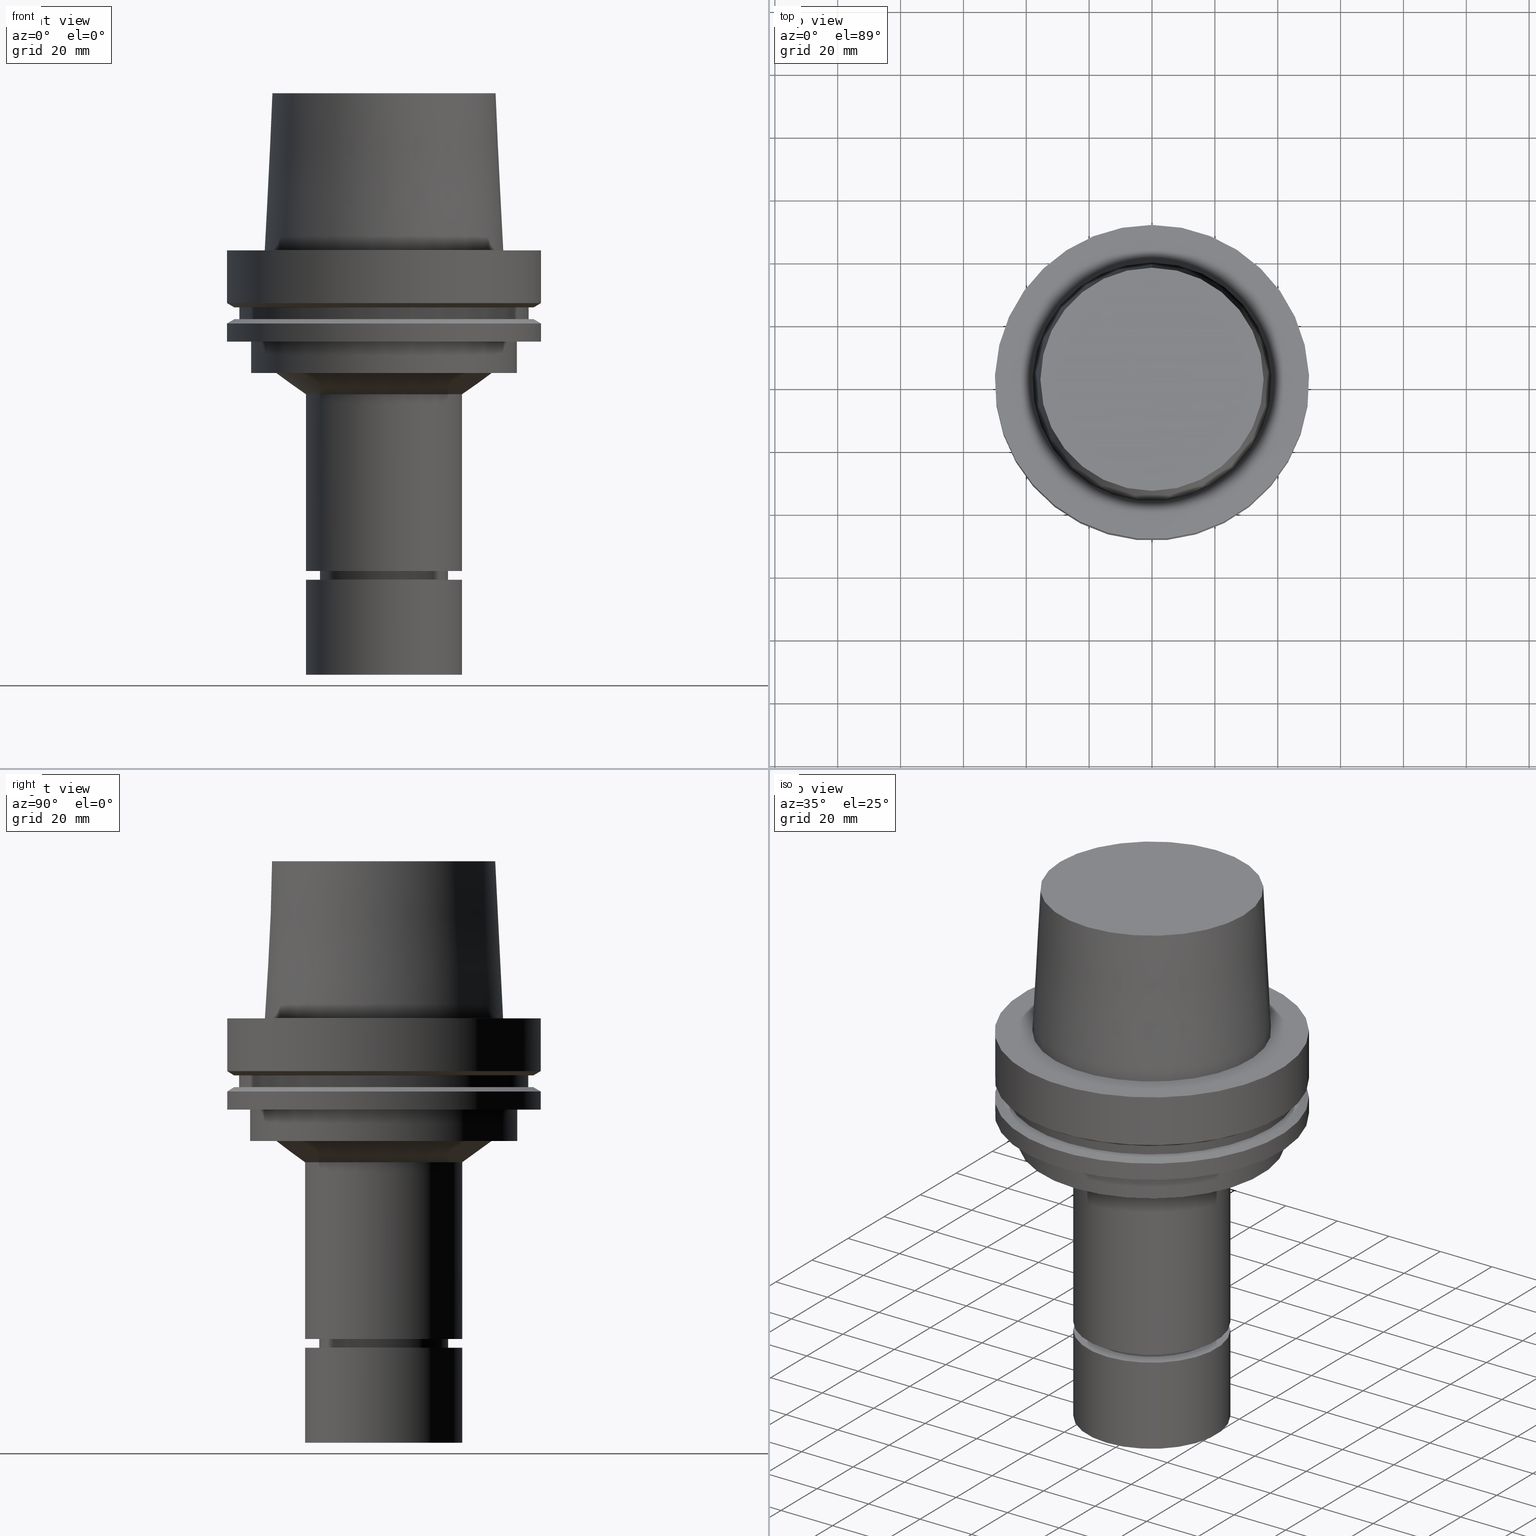
[diagram: canonical four-view strip — front | top / right | iso, engineering-drawing reading convention]
A machine part, canonical four-view strip (front | top / right | iso — engineering-drawing reading convention). The complete STEP part file that produces these views, byte-faithful:
ISO-10303-21;
HEADER;
FILE_DESCRIPTION((''),'1');
FILE_NAME('U:/Translate/02_3D_Field-HP\X2\FF71FF6FFF8CFF9F5916\X0\2013/02_Step_Field-HP\X2\FF71FF6FFF8CFF9F5916\X0\2013/HSK-A100-MEGAER32-135NL.stp','2016-06-22T04:00:22',(''),(''),'Spatial Interop R21 SP3','Kubotek KeyCreator 2011 V10.0.2 (22737)',' ');
FILE_SCHEMA(('automotive_design'));
ENDSEC;
DATA;
#1=MECHANICAL_DESIGN_GEOMETRIC_PRESENTATION_REPRESENTATION(' ',(#14,#15,#16,#17,#18,#19,#20,#21,#22,#23,#24,#25,#26,#27,#28,#29,#30,#31,#32,#33,#34,#35,#36,#37,#38,#39,#40,#41,#42,#43,#44,#45,#46,#47,#48,#49,#50,#51,#52,#53,#54,#55,#56,#57,#58,#59,#60,#61),#10);
#2=PRODUCT_DEFINITION_CONTEXT('',#62,'design');
#3=APPLICATION_PROTOCOL_DEFINITION('INTERNATIONAL STANDARD','automotive_design',1994,#62);
#4=PRODUCT_CATEGORY_RELATIONSHIP('NONE','NONE',#63,#64);
#5=SHAPE_DEFINITION_REPRESENTATION(#65,#66);
#6=PRODUCT_DEFINITION_CONTEXT('',#67,'design');
#7=APPLICATION_PROTOCOL_DEFINITION('INTERNATIONAL STANDARD','automotive_design',1994,#67);
#8=PRODUCT_CATEGORY_RELATIONSHIP('NONE','NONE',#68,#69);
#9=SHAPE_DEFINITION_REPRESENTATION(#70,#71);
#10= (GEOMETRIC_REPRESENTATION_CONTEXT(3)GLOBAL_UNCERTAINTY_ASSIGNED_CONTEXT((#74))GLOBAL_UNIT_ASSIGNED_CONTEXT((#76,#77,#78))REPRESENTATION_CONTEXT('NONE','WORKSPACE'));
#14=STYLED_ITEM('',(#80),#81);
#15=STYLED_ITEM('',(#82,#83),#84);
#16=STYLED_ITEM('',(#85,#86),#87);
#17=STYLED_ITEM('',(#88),#89);
#18=STYLED_ITEM('',(#90,#91),#92);
#19=STYLED_ITEM('',(#93,#94),#95);
#20=STYLED_ITEM('',(#96),#97);
#21=STYLED_ITEM('',(#98,#99),#100);
#22=STYLED_ITEM('',(#101),#102);
#23=STYLED_ITEM('',(#103,#104),#105);
#24=STYLED_ITEM('',(#106),#107);
#25=STYLED_ITEM('',(#108),#109);
#26=STYLED_ITEM('',(#110),#111);
#27=STYLED_ITEM('',(#112,#113),#114);
#28=STYLED_ITEM('',(#115),#116);
#29=STYLED_ITEM('',(#117),#118);
#30=STYLED_ITEM('',(#119,#120),#121);
#31=STYLED_ITEM('',(#122,#123),#124);
#32=STYLED_ITEM('',(#125,#126),#127);
#33=STYLED_ITEM('',(#128),#129);
#34=STYLED_ITEM('',(#130),#131);
#35=STYLED_ITEM('',(#132),#133);
#36=STYLED_ITEM('',(#134,#135),#136);
#37=STYLED_ITEM('',(#137,#138),#139);
#38=STYLED_ITEM('',(#140),#141);
#39=STYLED_ITEM('',(#142,#143),#144);
#40=STYLED_ITEM('',(#145),#146);
#41=STYLED_ITEM('',(#147,#148),#149);
#42=STYLED_ITEM('',(#150,#151),#152);
#43=STYLED_ITEM('',(#153),#154);
#44=STYLED_ITEM('',(#155,#156),#157);
#45=STYLED_ITEM('',(#158,#159),#160);
#46=STYLED_ITEM('',(#161,#162),#163);
#47=STYLED_ITEM('',(#164,#165),#166);
#48=STYLED_ITEM('',(#167,#168),#169);
#49=STYLED_ITEM('',(#170),#171);
#50=STYLED_ITEM('',(#172,#173),#174);
#51=STYLED_ITEM('',(#175,#176),#177);
#52=STYLED_ITEM('',(#178,#179),#180);
#53=STYLED_ITEM('',(#181),#182);
#54=STYLED_ITEM('',(#183,#184),#185);
#55=STYLED_ITEM('',(#186),#187);
#56=STYLED_ITEM('',(#188),#189);
#57=STYLED_ITEM('',(#190,#191),#192);
#58=STYLED_ITEM('',(#193,#194),#195);
#59=STYLED_ITEM('',(#196),#197);
#60=STYLED_ITEM('',(#198),#199);
#61=STYLED_ITEM('',(#200),#201);
#62=APPLICATION_CONTEXT(' ');
#63=PRODUCT_CATEGORY('part','NONE');
#64=PRODUCT_RELATED_PRODUCT_CATEGORY('detail',' ',(#202));
#65=PRODUCT_DEFINITION_SHAPE('NONE','NONE',#203);
#66=ADVANCED_BREP_SHAPE_REPRESENTATION('Unnamed[1]',(#160,#204),#10);
#67=APPLICATION_CONTEXT(' ');
#68=PRODUCT_CATEGORY('part','NONE');
#69=PRODUCT_RELATED_PRODUCT_CATEGORY('detail',' ',(#205));
#70=PRODUCT_DEFINITION_SHAPE('NONE','NONE',#206);
#71=ADVANCED_BREP_SHAPE_REPRESENTATION('Unnamed[1]',(#114,#207),#10);
#74=UNCERTAINTY_MEASURE_WITH_UNIT(LENGTH_MEASURE(1.0E-006),#76,'','');
#76= (CONVERSION_BASED_UNIT('MILLIMETRE',#210)LENGTH_UNIT()NAMED_UNIT(#213));
#77= (NAMED_UNIT(#215)PLANE_ANGLE_UNIT()SI_UNIT($,.RADIAN.));
#78= (NAMED_UNIT(#215)SOLID_ANGLE_UNIT()SI_UNIT($,.STERADIAN.));
#80=PRESENTATION_STYLE_ASSIGNMENT((#221));
#81=EDGE_CURVE('Unnamed[1]',#222,#222,#223,.T.);
#82=PRESENTATION_STYLE_ASSIGNMENT((#224));
#83=PRESENTATION_STYLE_ASSIGNMENT((#225));
#84=ADVANCED_FACE('Unnamed[1]',(#226),#227,.T.);
#85=PRESENTATION_STYLE_ASSIGNMENT((#228));
#86=PRESENTATION_STYLE_ASSIGNMENT((#229));
#87=ADVANCED_FACE('Unnamed[1]',(#230,#231),#232,.T.);
#88=PRESENTATION_STYLE_ASSIGNMENT((#233));
#89=EDGE_CURVE('Unnamed[1]',#234,#234,#235,.T.);
#90=PRESENTATION_STYLE_ASSIGNMENT((#236));
#91=PRESENTATION_STYLE_ASSIGNMENT((#237));
#92=ADVANCED_FACE('Unnamed[1]',(#238),#239,.T.);
#93=PRESENTATION_STYLE_ASSIGNMENT((#240));
#94=PRESENTATION_STYLE_ASSIGNMENT((#241));
#95=ADVANCED_FACE('Unnamed[1]',(#242,#243),#244,.T.);
#96=PRESENTATION_STYLE_ASSIGNMENT((#245));
#97=EDGE_CURVE('Unnamed[1]',#246,#246,#247,.T.);
#98=PRESENTATION_STYLE_ASSIGNMENT((#248));
#99=PRESENTATION_STYLE_ASSIGNMENT((#249));
#100=ADVANCED_FACE('Unnamed[1]',(#250,#251),#252,.T.);
#101=PRESENTATION_STYLE_ASSIGNMENT((#253));
#102=EDGE_CURVE('Unnamed[1]',#254,#254,#255,.T.);
#103=PRESENTATION_STYLE_ASSIGNMENT((#256));
#104=PRESENTATION_STYLE_ASSIGNMENT((#257));
#105=ADVANCED_FACE('Unnamed[1]',(#258,#259),#260,.T.);
#106=PRESENTATION_STYLE_ASSIGNMENT((#261));
#107=EDGE_CURVE('Unnamed[1]',#262,#262,#263,.T.);
#108=PRESENTATION_STYLE_ASSIGNMENT((#264));
#109=EDGE_CURVE('Unnamed[1]',#265,#265,#266,.T.);
#110=PRESENTATION_STYLE_ASSIGNMENT((#267));
#111=EDGE_CURVE('Unnamed[1]',#268,#268,#269,.T.);
#112=PRESENTATION_STYLE_ASSIGNMENT((#270));
#113=PRESENTATION_STYLE_ASSIGNMENT((#271));
#114=MANIFOLD_SOLID_BREP('Unnamed[1]',#272);
#115=PRESENTATION_STYLE_ASSIGNMENT((#273));
#116=EDGE_CURVE('Unnamed[1]',#274,#274,#275,.T.);
#117=PRESENTATION_STYLE_ASSIGNMENT((#276));
#118=EDGE_CURVE('Unnamed[1]',#277,#277,#278,.T.);
#119=PRESENTATION_STYLE_ASSIGNMENT((#279));
#120=PRESENTATION_STYLE_ASSIGNMENT((#280));
#121=ADVANCED_FACE('Unnamed[1]',(#281,#282),#283,.T.);
#122=PRESENTATION_STYLE_ASSIGNMENT((#284));
#123=PRESENTATION_STYLE_ASSIGNMENT((#285));
#124=ADVANCED_FACE('Unnamed[1]',(#286,#287),#288,.T.);
#125=PRESENTATION_STYLE_ASSIGNMENT((#289));
#126=PRESENTATION_STYLE_ASSIGNMENT((#290));
#127=ADVANCED_FACE('Unnamed[1]',(#291,#292),#293,.T.);
#128=PRESENTATION_STYLE_ASSIGNMENT((#294));
#129=EDGE_CURVE('Unnamed[1]',#295,#295,#296,.T.);
#130=PRESENTATION_STYLE_ASSIGNMENT((#297));
#131=EDGE_CURVE('Unnamed[1]',#298,#298,#299,.T.);
#132=PRESENTATION_STYLE_ASSIGNMENT((#300));
#133=EDGE_CURVE('Unnamed[1]',#301,#301,#302,.T.);
#134=PRESENTATION_STYLE_ASSIGNMENT((#303));
#135=PRESENTATION_STYLE_ASSIGNMENT((#304));
#136=ADVANCED_FACE('Unnamed[1]',(#305,#306),#307,.T.);
#137=PRESENTATION_STYLE_ASSIGNMENT((#308));
#138=PRESENTATION_STYLE_ASSIGNMENT((#309));
#139=ADVANCED_FACE('Unnamed[1]',(#310,#311),#312,.T.);
#140=PRESENTATION_STYLE_ASSIGNMENT((#313));
#141=EDGE_CURVE('Unnamed[1]',#314,#314,#315,.T.);
#142=PRESENTATION_STYLE_ASSIGNMENT((#316));
#143=PRESENTATION_STYLE_ASSIGNMENT((#317));
#144=ADVANCED_FACE('Unnamed[1]',(#318,#319),#320,.T.);
#145=PRESENTATION_STYLE_ASSIGNMENT((#321));
#146=EDGE_CURVE('Unnamed[1]',#322,#322,#323,.T.);
#147=PRESENTATION_STYLE_ASSIGNMENT((#324));
#148=PRESENTATION_STYLE_ASSIGNMENT((#325));
#149=ADVANCED_FACE('Unnamed[1]',(#326,#327),#328,.T.);
#150=PRESENTATION_STYLE_ASSIGNMENT((#329));
#151=PRESENTATION_STYLE_ASSIGNMENT((#330));
#152=ADVANCED_FACE('Unnamed[1]',(#331,#332),#333,.T.);
#153=PRESENTATION_STYLE_ASSIGNMENT((#334));
#154=EDGE_CURVE('Unnamed[1]',#335,#335,#336,.T.);
#155=PRESENTATION_STYLE_ASSIGNMENT((#337));
#156=PRESENTATION_STYLE_ASSIGNMENT((#338));
#157=ADVANCED_FACE('Unnamed[1]',(#339,#340),#341,.T.);
#158=PRESENTATION_STYLE_ASSIGNMENT((#342));
#159=PRESENTATION_STYLE_ASSIGNMENT((#343));
#160=MANIFOLD_SOLID_BREP('Unnamed[1]',#344);
#161=PRESENTATION_STYLE_ASSIGNMENT((#345));
#162=PRESENTATION_STYLE_ASSIGNMENT((#346));
#163=ADVANCED_FACE('Unnamed[1]',(#347),#348,.T.);
#164=PRESENTATION_STYLE_ASSIGNMENT((#349));
#165=PRESENTATION_STYLE_ASSIGNMENT((#350));
#166=ADVANCED_FACE('Unnamed[1]',(#351,#352),#353,.T.);
#167=PRESENTATION_STYLE_ASSIGNMENT((#354));
#168=PRESENTATION_STYLE_ASSIGNMENT((#355));
#169=ADVANCED_FACE('Unnamed[1]',(#356,#357),#358,.T.);
#170=PRESENTATION_STYLE_ASSIGNMENT((#359));
#171=EDGE_CURVE('Unnamed[1]',#360,#360,#361,.T.);
#172=PRESENTATION_STYLE_ASSIGNMENT((#362));
#173=PRESENTATION_STYLE_ASSIGNMENT((#363));
#174=ADVANCED_FACE('Unnamed[1]',(#364,#365),#366,.T.);
#175=PRESENTATION_STYLE_ASSIGNMENT((#367));
#176=PRESENTATION_STYLE_ASSIGNMENT((#368));
#177=ADVANCED_FACE('Unnamed[1]',(#369,#370),#371,.T.);
#178=PRESENTATION_STYLE_ASSIGNMENT((#372));
#179=PRESENTATION_STYLE_ASSIGNMENT((#373));
#180=ADVANCED_FACE('Unnamed[1]',(#374,#375),#376,.T.);
#181=PRESENTATION_STYLE_ASSIGNMENT((#377));
#182=EDGE_CURVE('Unnamed[1]',#378,#378,#379,.T.);
#183=PRESENTATION_STYLE_ASSIGNMENT((#380));
#184=PRESENTATION_STYLE_ASSIGNMENT((#381));
#185=ADVANCED_FACE('Unnamed[1]',(#382,#383),#384,.T.);
#186=PRESENTATION_STYLE_ASSIGNMENT((#385));
#187=EDGE_CURVE('Unnamed[1]',#386,#386,#387,.T.);
#188=PRESENTATION_STYLE_ASSIGNMENT((#388));
#189=EDGE_CURVE('Unnamed[1]',#389,#389,#390,.T.);
#190=PRESENTATION_STYLE_ASSIGNMENT((#391));
#191=PRESENTATION_STYLE_ASSIGNMENT((#392));
#192=ADVANCED_FACE('Unnamed[1]',(#393),#394,.T.);
#193=PRESENTATION_STYLE_ASSIGNMENT((#395));
#194=PRESENTATION_STYLE_ASSIGNMENT((#396));
#195=ADVANCED_FACE('Unnamed[1]',(#397,#398),#399,.T.);
#196=PRESENTATION_STYLE_ASSIGNMENT((#400));
#197=EDGE_CURVE('Unnamed[1]',#401,#401,#402,.T.);
#198=PRESENTATION_STYLE_ASSIGNMENT((#403));
#199=EDGE_CURVE('Unnamed[1]',#404,#404,#405,.T.);
#200=PRESENTATION_STYLE_ASSIGNMENT((#406));
#201=EDGE_CURVE('Unnamed[1]',#407,#407,#408,.T.);
#202=PRODUCT('Unnamed[1]','Unnamed[1]','PART-Unnamed[1]-DESC',(#409));
#203=PRODUCT_DEFINITION('NONE','NONE',#410,#2);
#204=AXIS2_PLACEMENT_3D('',#411,#412,#413);
#205=PRODUCT('Unnamed[1]','Unnamed[1]','PART-Unnamed[1]-DESC',(#414));
#206=PRODUCT_DEFINITION('NONE','NONE',#415,#6);
#207=AXIS2_PLACEMENT_3D('',#416,#417,#418);
#210=LENGTH_MEASURE_WITH_UNIT(LENGTH_MEASURE(1.0),#419);
#213=DIMENSIONAL_EXPONENTS(1.0,0.0,0.0,0.0,0.0,0.0,0.0);
#215=DIMENSIONAL_EXPONENTS(0.0,0.0,0.0,0.0,0.0,0.0,0.0);
#221=CURVE_STYLE('',#420,POSITIVE_LENGTH_MEASURE(1000.0),#421);
#222=VERTEX_POINT('',#422);
#223=CIRCLE('',#423,25.0);
#224=SURFACE_STYLE_USAGE(.BOTH.,#424);
#225=CURVE_STYLE('',#425,POSITIVE_LENGTH_MEASURE(1000.0),#426);
#226=FACE_OUTER_BOUND('',#427,.T.);
#227=PLANE('',#428);
#228=SURFACE_STYLE_USAGE(.BOTH.,#429);
#229=CURVE_STYLE('',#430,POSITIVE_LENGTH_MEASURE(1000.0),#431);
#230=FACE_BOUND('',#432,.T.);
#231=FACE_BOUND('',#433,.T.);
#232=CYLINDRICAL_SURFACE('',#434,50.0);
#233=CURVE_STYLE('',#435,POSITIVE_LENGTH_MEASURE(1000.0),#436);
#234=VERTEX_POINT('',#437);
#235=CIRCLE('',#438,25.0);
#236=SURFACE_STYLE_USAGE(.BOTH.,#439);
#237=CURVE_STYLE('',#440,POSITIVE_LENGTH_MEASURE(1000.0),#441);
#238=FACE_OUTER_BOUND('',#442,.T.);
#239=PLANE('',#443);
#240=SURFACE_STYLE_USAGE(.BOTH.,#444);
#241=CURVE_STYLE('',#445,POSITIVE_LENGTH_MEASURE(1000.0),#446);
#242=FACE_BOUND('',#447,.T.);
#243=FACE_BOUND('',#448,.T.);
#244=CYLINDRICAL_SURFACE('',#449,25.0);
#245=CURVE_STYLE('',#450,POSITIVE_LENGTH_MEASURE(1000.0),#451);
#246=VERTEX_POINT('',#452);
#247=CIRCLE('',#453,50.0);
#248=SURFACE_STYLE_USAGE(.BOTH.,#454);
#249=CURVE_STYLE('',#455,POSITIVE_LENGTH_MEASURE(1000.0),#456);
#250=FACE_BOUND('',#457,.T.);
#251=FACE_OUTER_BOUND('',#458,.T.);
#252=PLANE('',#459);
#253=CURVE_STYLE('',#460,POSITIVE_LENGTH_MEASURE(1000.0),#461);
#254=VERTEX_POINT('',#462);
#255=CIRCLE('',#463,50.0);
#256=SURFACE_STYLE_USAGE(.BOTH.,#464);
#257=CURVE_STYLE('',#465,POSITIVE_LENGTH_MEASURE(1000.0),#466);
#258=FACE_OUTER_BOUND('',#467,.T.);
#259=FACE_BOUND('',#468,.T.);
#260=PLANE('',#469);
#261=CURVE_STYLE('',#470,POSITIVE_LENGTH_MEASURE(1000.0),#471);
#262=VERTEX_POINT('',#472);
#263=CIRCLE('',#473,34.3193294456171);
#264=CURVE_STYLE('',#474,POSITIVE_LENGTH_MEASURE(1000.0),#475);
#265=VERTEX_POINT('',#476);
#266=CIRCLE('',#477,50.0);
#267=CURVE_STYLE('',#478,POSITIVE_LENGTH_MEASURE(1000.0),#479);
#268=VERTEX_POINT('',#480);
#269=CIRCLE('',#481,20.0000000000001);
#270=SURFACE_STYLE_USAGE(.BOTH.,#482);
#271=CURVE_STYLE('',#483,POSITIVE_LENGTH_MEASURE(1000.0),#484);
#272=CLOSED_SHELL('',(#92,#163,#174));
#273=CURVE_STYLE('',#485,POSITIVE_LENGTH_MEASURE(1000.0),#486);
#274=VERTEX_POINT('',#487);
#275=CIRCLE('',#488,25.0);
#276=CURVE_STYLE('',#489,POSITIVE_LENGTH_MEASURE(1000.0),#490);
#277=VERTEX_POINT('',#491);
#278=CIRCLE('',#492,42.5);
#279=SURFACE_STYLE_USAGE(.BOTH.,#493);
#280=CURVE_STYLE('',#494,POSITIVE_LENGTH_MEASURE(1000.0),#495);
#281=FACE_BOUND('',#496,.T.);
#282=FACE_BOUND('',#497,.T.);
#283=CONICAL_SURFACE('',#498,48.81129763,1.04719755328238);
#284=SURFACE_STYLE_USAGE(.BOTH.,#499);
#285=CURVE_STYLE('',#500,POSITIVE_LENGTH_MEASURE(1000.0),#501);
#286=FACE_BOUND('',#502,.T.);
#287=FACE_OUTER_BOUND('',#503,.T.);
#288=PLANE('',#504);
#289=SURFACE_STYLE_USAGE(.BOTH.,#505);
#290=CURVE_STYLE('',#506,POSITIVE_LENGTH_MEASURE(1000.0),#507);
#291=FACE_BOUND('',#508,.T.);
#292=FACE_BOUND('',#509,.T.);
#293=CONICAL_SURFACE('',#510,36.7500000007484,0.0499583956894843);
#294=CURVE_STYLE('',#511,POSITIVE_LENGTH_MEASURE(1000.0),#512);
#295=VERTEX_POINT('',#513);
#296=CIRCLE('',#514,20.4999999999911);
#297=CURVE_STYLE('',#515,POSITIVE_LENGTH_MEASURE(1000.0),#516);
#298=VERTEX_POINT('',#517);
#299=CIRCLE('',#518,50.0);
#300=CURVE_STYLE('',#519,POSITIVE_LENGTH_MEASURE(1000.0),#520);
#301=VERTEX_POINT('',#521);
#302=CIRCLE('',#522,20.5000000000012);
#303=SURFACE_STYLE_USAGE(.BOTH.,#523);
#304=CURVE_STYLE('',#524,POSITIVE_LENGTH_MEASURE(1000.0),#525);
#305=FACE_BOUND('',#526,.T.);
#306=FACE_BOUND('',#527,.T.);
#307=CYLINDRICAL_SURFACE('',#528,46.0);
#308=SURFACE_STYLE_USAGE(.BOTH.,#529);
#309=CURVE_STYLE('',#530,POSITIVE_LENGTH_MEASURE(1000.0),#531);
#310=FACE_BOUND('',#532,.T.);
#311=FACE_BOUND('',#533,.T.);
#312=CONICAL_SURFACE('',#534,29.6596647228086,0.942916776538398);
#313=CURVE_STYLE('',#535,POSITIVE_LENGTH_MEASURE(1000.0),#536);
#314=VERTEX_POINT('',#537);
#315=CIRCLE('',#538,35.5000000015618);
#316=SURFACE_STYLE_USAGE(.BOTH.,#539);
#317=CURVE_STYLE('',#540,POSITIVE_LENGTH_MEASURE(1000.0),#541);
#318=FACE_BOUND('',#542,.T.);
#319=FACE_BOUND('',#543,.T.);
#320=CYLINDRICAL_SURFACE('',#544,42.5);
#321=CURVE_STYLE('',#545,POSITIVE_LENGTH_MEASURE(1000.0),#546);
#322=VERTEX_POINT('',#547);
#323=CIRCLE('',#548,25.0);
#324=SURFACE_STYLE_USAGE(.BOTH.,#549);
#325=CURVE_STYLE('',#550,POSITIVE_LENGTH_MEASURE(1000.0),#551);
#326=FACE_BOUND('',#552,.T.);
#327=FACE_BOUND('',#553,.T.);
#328=CYLINDRICAL_SURFACE('',#554,20.4999999999961);
#329=SURFACE_STYLE_USAGE(.BOTH.,#555);
#330=CURVE_STYLE('',#556,POSITIVE_LENGTH_MEASURE(1000.0),#557);
#331=FACE_BOUND('',#558,.T.);
#332=FACE_OUTER_BOUND('',#559,.T.);
#333=PLANE('',#560);
#334=CURVE_STYLE('',#561,POSITIVE_LENGTH_MEASURE(1000.0),#562);
#335=VERTEX_POINT('',#563);
#336=CIRCLE('',#564,46.0);
#337=SURFACE_STYLE_USAGE(.BOTH.,#565);
#338=CURVE_STYLE('',#566,POSITIVE_LENGTH_MEASURE(1000.0),#567);
#339=FACE_BOUND('',#568,.T.);
#340=FACE_BOUND('',#569,.T.);
#341=CONICAL_SURFACE('',#570,19.4499999999999,0.523598775598226);
#342=SURFACE_STYLE_USAGE(.BOTH.,#571);
#343=CURVE_STYLE('',#572,POSITIVE_LENGTH_MEASURE(1000.0),#573);
#344=CLOSED_SHELL('',(#84,#127,#180,#87,#121,#100,#136,#105,#177,#169,#166,#144,#124,#139,#95,#152,#149,#195,#185,#157,#192));
#345=SURFACE_STYLE_USAGE(.BOTH.,#574);
#346=CURVE_STYLE('',#575,POSITIVE_LENGTH_MEASURE(1000.0),#576);
#347=FACE_OUTER_BOUND('',#577,.T.);
#348=PLANE('',#578);
#349=SURFACE_STYLE_USAGE(.BOTH.,#579);
#350=CURVE_STYLE('',#580,POSITIVE_LENGTH_MEASURE(1000.0),#581);
#351=FACE_BOUND('',#582,.T.);
#352=FACE_OUTER_BOUND('',#583,.T.);
#353=PLANE('',#584);
#354=SURFACE_STYLE_USAGE(.BOTH.,#585);
#355=CURVE_STYLE('',#586,POSITIVE_LENGTH_MEASURE(1000.0),#587);
#356=FACE_BOUND('',#588,.T.);
#357=FACE_BOUND('',#589,.T.);
#358=CYLINDRICAL_SURFACE('',#590,50.0);
#359=CURVE_STYLE('',#591,POSITIVE_LENGTH_MEASURE(1000.0),#592);
#360=VERTEX_POINT('',#593);
#361=CIRCLE('',#594,18.8999999999997);
#362=SURFACE_STYLE_USAGE(.BOTH.,#595);
#363=CURVE_STYLE('',#596,POSITIVE_LENGTH_MEASURE(1000.0),#597);
#364=FACE_BOUND('',#598,.T.);
#365=FACE_BOUND('',#599,.T.);
#366=CYLINDRICAL_SURFACE('',#600,25.0);
#367=SURFACE_STYLE_USAGE(.BOTH.,#601);
#368=CURVE_STYLE('',#602,POSITIVE_LENGTH_MEASURE(1000.0),#603);
#369=FACE_BOUND('',#604,.T.);
#370=FACE_BOUND('',#605,.T.);
#371=CONICAL_SURFACE('',#606,48.81129763,1.04719755328238);
#372=SURFACE_STYLE_USAGE(.BOTH.,#607);
#373=CURVE_STYLE('',#608,POSITIVE_LENGTH_MEASURE(1000.0),#609);
#374=FACE_OUTER_BOUND('',#610,.T.);
#375=FACE_BOUND('',#611,.T.);
#376=PLANE('',#612);
#377=CURVE_STYLE('',#613,POSITIVE_LENGTH_MEASURE(1000.0),#614);
#378=VERTEX_POINT('',#615);
#379=CIRCLE('',#616,47.62259526);
#380=SURFACE_STYLE_USAGE(.BOTH.,#617);
#381=CURVE_STYLE('',#618,POSITIVE_LENGTH_MEASURE(1000.0),#619);
#382=FACE_BOUND('',#620,.T.);
#383=FACE_BOUND('',#621,.T.);
#384=CYLINDRICAL_SURFACE('',#622,20.0);
#385=CURVE_STYLE('',#623,POSITIVE_LENGTH_MEASURE(1000.0),#624);
#386=VERTEX_POINT('',#625);
#387=CIRCLE('',#626,47.62259526);
#388=CURVE_STYLE('',#627,POSITIVE_LENGTH_MEASURE(1000.0),#628);
#389=VERTEX_POINT('',#629);
#390=CIRCLE('',#630,42.5);
#391=SURFACE_STYLE_USAGE(.BOTH.,#631);
#392=CURVE_STYLE('',#632,POSITIVE_LENGTH_MEASURE(1000.0),#633);
#393=FACE_OUTER_BOUND('',#634,.T.);
#394=PLANE('',#635);
#395=SURFACE_STYLE_USAGE(.BOTH.,#636);
#396=CURVE_STYLE('',#637,POSITIVE_LENGTH_MEASURE(1000.0),#638);
#397=FACE_BOUND('',#639,.T.);
#398=FACE_BOUND('',#640,.T.);
#399=CONICAL_SURFACE('',#641,20.2500000000006,0.766162649696648);
#400=CURVE_STYLE('',#642,POSITIVE_LENGTH_MEASURE(1000.0),#643);
#401=VERTEX_POINT('',#644);
#402=CIRCLE('',#645,37.9999999999349);
#403=CURVE_STYLE('',#646,POSITIVE_LENGTH_MEASURE(1000.0),#647);
#404=VERTEX_POINT('',#648);
#405=CIRCLE('',#649,46.0);
#406=CURVE_STYLE('',#650,POSITIVE_LENGTH_MEASURE(1000.0),#651);
#407=VERTEX_POINT('',#652);
#408=CIRCLE('',#653,20.0);
#409=PRODUCT_CONTEXT('',#62,'mechanical');
#410=PRODUCT_DEFINITION_FORMATION_WITH_SPECIFIED_SOURCE(' ','NONE',#202,.NOT_KNOWN.);
#411=CARTESIAN_POINT('',(0.0,0.0,0.0));
#412=DIRECTION('',(0.0,0.0,1.0));
#413=DIRECTION('',(1.0,0.0,0.0));
#414=PRODUCT_CONTEXT('',#67,'mechanical');
#415=PRODUCT_DEFINITION_FORMATION_WITH_SPECIFIED_SOURCE(' ','NONE',#205,.NOT_KNOWN.);
#416=CARTESIAN_POINT('',(0.0,0.0,0.0));
#417=DIRECTION('',(0.0,0.0,1.0));
#418=DIRECTION('',(1.0,0.0,0.0));
#419= (NAMED_UNIT(#213)LENGTH_UNIT()SI_UNIT(.MILLI.,.METRE.));
#420=DRAUGHTING_PRE_DEFINED_CURVE_FONT('continuous');
#421=COLOUR_RGB('',0.0,1.0,0.0);
#422=CARTESIAN_POINT('',(8.26636589424463E-015,25.0,-135.0));
#423=AXIS2_PLACEMENT_3D('',#655,#656,#657);
#424=SURFACE_SIDE_STYLE('',(#658));
#425=DRAUGHTING_PRE_DEFINED_CURVE_FONT('continuous');
#426=COLOUR_RGB('',0.0,1.0,0.0);
#427=EDGE_LOOP('',(#659));
#428=AXIS2_PLACEMENT_3D('',#660,#661,#662);
#429=SURFACE_SIDE_STYLE('',(#663));
#430=DRAUGHTING_PRE_DEFINED_CURVE_FONT('continuous');
#431=COLOUR_RGB('',0.0,1.0,0.0);
#432=EDGE_LOOP('',(#664));
#433=EDGE_LOOP('',(#665));
#434=AXIS2_PLACEMENT_3D('',#666,#667,#668);
#435=DRAUGHTING_PRE_DEFINED_CURVE_FONT('continuous');
#436=COLOUR_RGB('',0.0,1.0,0.0);
#437=CARTESIAN_POINT('',(6.2457083239948E-015,25.0,-102.000157569404));
#438=AXIS2_PLACEMENT_3D('',#669,#670,#671);
#439=SURFACE_SIDE_STYLE('',(#672));
#440=DRAUGHTING_PRE_DEFINED_CURVE_FONT('continuous');
#441=COLOUR_RGB('',0.0,1.0,0.0);
#442=EDGE_LOOP('',(#673));
#443=AXIS2_PLACEMENT_3D('',#674,#675,#676);
#444=SURFACE_SIDE_STYLE('',(#677));
#445=DRAUGHTING_PRE_DEFINED_CURVE_FONT('continuous');
#446=COLOUR_RGB('',0.0,1.0,0.0);
#447=EDGE_LOOP('',(#678));
#448=EDGE_LOOP('',(#679));
#449=AXIS2_PLACEMENT_3D('',#680,#681,#682);
#450=DRAUGHTING_PRE_DEFINED_CURVE_FONT('continuous');
#451=COLOUR_RGB('',0.0,1.0,0.0);
#452=CARTESIAN_POINT('',(1.0257889421431E-015,50.0,-16.75240474));
#453=AXIS2_PLACEMENT_3D('',#683,#684,#685);
#454=SURFACE_SIDE_STYLE('',(#686));
#455=DRAUGHTING_PRE_DEFINED_CURVE_FONT('continuous');
#456=COLOUR_RGB('',0.0,1.0,0.0);
#457=EDGE_LOOP('',(#687));
#458=EDGE_LOOP('',(#688));
#459=AXIS2_PLACEMENT_3D('',#689,#690,#691);
#460=DRAUGHTING_PRE_DEFINED_CURVE_FONT('continuous');
#461=COLOUR_RGB('',0.0,1.0,0.0);
#462=CARTESIAN_POINT('',(1.42350465615161E-015,50.0,-23.24759526));
#463=AXIS2_PLACEMENT_3D('',#692,#693,#694);
#464=SURFACE_SIDE_STYLE('',(#695));
#465=DRAUGHTING_PRE_DEFINED_CURVE_FONT('continuous');
#466=COLOUR_RGB('',0.0,1.0,0.0);
#467=EDGE_LOOP('',(#696));
#468=EDGE_LOOP('',(#697));
#469=AXIS2_PLACEMENT_3D('',#698,#699,#700);
#470=DRAUGHTING_PRE_DEFINED_CURVE_FONT('continuous');
#471=COLOUR_RGB('',0.0,1.0,0.0);
#472=CARTESIAN_POINT('',(2.38806125833734E-015,34.3193294456171,-39.0));
#473=AXIS2_PLACEMENT_3D('',#701,#702,#703);
#474=DRAUGHTING_PRE_DEFINED_CURVE_FONT('continuous');
#475=COLOUR_RGB('',0.0,1.0,0.0);
#476=CARTESIAN_POINT('',(1.77573785876366E-015,50.0,-29.0));
#477=AXIS2_PLACEMENT_3D('',#704,#705,#706);
#478=DRAUGHTING_PRE_DEFINED_CURVE_FONT('continuous');
#479=COLOUR_RGB('',0.0,1.0,0.0);
#480=CARTESIAN_POINT('',(7.4761468784538E-015,20.0000000000001,-122.094744111673));
#481=AXIS2_PLACEMENT_3D('',#707,#708,#709);
#482=SURFACE_SIDE_STYLE('',(#710));
#483=DRAUGHTING_PRE_DEFINED_CURVE_FONT('continuous');
#484=COLOUR_RGB('',0.0,1.0,0.0);
#485=DRAUGHTING_PRE_DEFINED_CURVE_FONT('continuous');
#486=COLOUR_RGB('',0.0,1.0,0.0);
#487=CARTESIAN_POINT('',(2.80227603553221E-015,25.0,-45.76464067));
#488=AXIS2_PLACEMENT_3D('',#711,#712,#713);
#489=DRAUGHTING_PRE_DEFINED_CURVE_FONT('continuous');
#490=COLOUR_RGB('',0.0,1.0,0.0);
#491=CARTESIAN_POINT('',(1.77573785876366E-015,42.5,-29.0));
#492=AXIS2_PLACEMENT_3D('',#714,#715,#716);
#493=SURFACE_SIDE_STYLE('',(#717));
#494=DRAUGHTING_PRE_DEFINED_CURVE_FONT('continuous');
#495=COLOUR_RGB('',0.0,1.0,0.0);
#496=EDGE_LOOP('',(#718));
#497=EDGE_LOOP('',(#719));
#498=AXIS2_PLACEMENT_3D('',#720,#721,#722);
#499=SURFACE_SIDE_STYLE('',(#723));
#500=DRAUGHTING_PRE_DEFINED_CURVE_FONT('continuous');
#501=COLOUR_RGB('',0.0,1.0,0.0);
#502=EDGE_LOOP('',(#724));
#503=EDGE_LOOP('',(#725));
#504=AXIS2_PLACEMENT_3D('',#726,#727,#728);
#505=SURFACE_SIDE_STYLE('',(#729));
#506=DRAUGHTING_PRE_DEFINED_CURVE_FONT('continuous');
#507=COLOUR_RGB('',0.0,1.0,0.0);
#508=EDGE_LOOP('',(#730));
#509=EDGE_LOOP('',(#731));
#510=AXIS2_PLACEMENT_3D('',#732,#733,#734);
#511=DRAUGHTING_PRE_DEFINED_CURVE_FONT('continuous');
#512=COLOUR_RGB('',0.0,1.0,0.0);
#513=CARTESIAN_POINT('',(6.24570832399483E-015,20.4999999999911,-102.000157569404));
#514=AXIS2_PLACEMENT_3D('',#735,#736,#737);
#515=DRAUGHTING_PRE_DEFINED_CURVE_FONT('continuous');
#516=COLOUR_RGB('',0.0,1.0,0.0);
#517=CARTESIAN_POINT('',(-1.81547968506605E-031,50.0,-9.76766004263236E-016));
#518=AXIS2_PLACEMENT_3D('',#738,#739,#740);
#519=DRAUGHTING_PRE_DEFINED_CURVE_FONT('continuous');
#520=COLOUR_RGB('',0.0,1.0,0.0);
#521=CARTESIAN_POINT('',(6.62604227973845E-015,20.5000000000012,-108.211482434801));
#522=AXIS2_PLACEMENT_3D('',#741,#742,#743);
#523=SURFACE_SIDE_STYLE('',(#744));
#524=DRAUGHTING_PRE_DEFINED_CURVE_FONT('continuous');
#525=COLOUR_RGB('',0.0,1.0,0.0);
#526=EDGE_LOOP('',(#745));
#527=EDGE_LOOP('',(#746));
#528=AXIS2_PLACEMENT_3D('',#747,#748,#749);
#529=SURFACE_SIDE_STYLE('',(#750));
#530=DRAUGHTING_PRE_DEFINED_CURVE_FONT('continuous');
#531=COLOUR_RGB('',0.0,1.0,0.0);
#532=EDGE_LOOP('',(#751));
#533=EDGE_LOOP('',(#752));
#534=AXIS2_PLACEMENT_3D('',#753,#754,#755);
#535=DRAUGHTING_PRE_DEFINED_CURVE_FONT('continuous');
#536=COLOUR_RGB('',0.0,1.0,0.0);
#537=CARTESIAN_POINT('',(-3.06161699786838E-015,35.5000000015618,50.0));
#538=AXIS2_PLACEMENT_3D('',#756,#757,#758);
#539=SURFACE_SIDE_STYLE('',(#759));
#540=DRAUGHTING_PRE_DEFINED_CURVE_FONT('continuous');
#541=COLOUR_RGB('',0.0,1.0,0.0);
#542=EDGE_LOOP('',(#760));
#543=EDGE_LOOP('',(#761));
#544=AXIS2_PLACEMENT_3D('',#762,#763,#764);
#545=DRAUGHTING_PRE_DEFINED_CURVE_FONT('continuous');
#546=COLOUR_RGB('',0.0,1.0,0.0);
#547=CARTESIAN_POINT('',(6.41714922753213E-015,25.0,-104.8));
#548=AXIS2_PLACEMENT_3D('',#765,#766,#767);
#549=SURFACE_SIDE_STYLE('',(#768));
#550=DRAUGHTING_PRE_DEFINED_CURVE_FONT('continuous');
#551=COLOUR_RGB('',0.0,1.0,0.0);
#552=EDGE_LOOP('',(#769));
#553=EDGE_LOOP('',(#770));
#554=AXIS2_PLACEMENT_3D('',#771,#772,#773);
#555=SURFACE_SIDE_STYLE('',(#774));
#556=DRAUGHTING_PRE_DEFINED_CURVE_FONT('continuous');
#557=COLOUR_RGB('',0.0,1.0,0.0);
#558=EDGE_LOOP('',(#775));
#559=EDGE_LOOP('',(#776));
#560=AXIS2_PLACEMENT_3D('',#777,#778,#779);
#561=DRAUGHTING_PRE_DEFINED_CURVE_FONT('continuous');
#562=COLOUR_RGB('',0.0,1.0,0.0);
#563=CARTESIAN_POINT('',(1.10983616172729E-015,46.0,-18.125));
#564=AXIS2_PLACEMENT_3D('',#780,#781,#782);
#565=SURFACE_SIDE_STYLE('',(#783));
#566=DRAUGHTING_PRE_DEFINED_CURVE_FONT('continuous');
#567=COLOUR_RGB('',0.0,1.0,0.0);
#568=EDGE_LOOP('',(#784));
#569=EDGE_LOOP('',(#785));
#570=AXIS2_PLACEMENT_3D('',#786,#787,#788);
#571=SURFACE_SIDE_STYLE('',(#789));
#572=DRAUGHTING_PRE_DEFINED_CURVE_FONT('continuous');
#573=COLOUR_RGB('',0.0,1.0,0.0);
#574=SURFACE_SIDE_STYLE('',(#790));
#575=DRAUGHTING_PRE_DEFINED_CURVE_FONT('continuous');
#576=COLOUR_RGB('',0.0,1.0,0.0);
#577=EDGE_LOOP('',(#791));
#578=AXIS2_PLACEMENT_3D('',#792,#793,#794);
#579=SURFACE_SIDE_STYLE('',(#795));
#580=DRAUGHTING_PRE_DEFINED_CURVE_FONT('continuous');
#581=COLOUR_RGB('',0.0,1.0,0.0);
#582=EDGE_LOOP('',(#796));
#583=EDGE_LOOP('',(#797));
#584=AXIS2_PLACEMENT_3D('',#798,#799,#800);
#585=SURFACE_SIDE_STYLE('',(#801));
#586=DRAUGHTING_PRE_DEFINED_CURVE_FONT('continuous');
#587=COLOUR_RGB('',0.0,1.0,0.0);
#588=EDGE_LOOP('',(#802));
#589=EDGE_LOOP('',(#803));
#590=AXIS2_PLACEMENT_3D('',#804,#805,#806);
#591=DRAUGHTING_PRE_DEFINED_CURVE_FONT('continuous');
#592=COLOUR_RGB('',0.0,1.0,0.0);
#593=CARTESIAN_POINT('',(7.5928101547136E-015,18.8999999999997,-124.0));
#594=AXIS2_PLACEMENT_3D('',#807,#808,#809);
#595=SURFACE_SIDE_STYLE('',(#810));
#596=DRAUGHTING_PRE_DEFINED_CURVE_FONT('continuous');
#597=COLOUR_RGB('',0.0,1.0,0.0);
#598=EDGE_LOOP('',(#811));
#599=EDGE_LOOP('',(#812));
#600=AXIS2_PLACEMENT_3D('',#813,#814,#815);
#601=SURFACE_SIDE_STYLE('',(#816));
#602=DRAUGHTING_PRE_DEFINED_CURVE_FONT('continuous');
#603=COLOUR_RGB('',0.0,1.0,0.0);
#604=EDGE_LOOP('',(#817));
#605=EDGE_LOOP('',(#818));
#606=AXIS2_PLACEMENT_3D('',#819,#820,#821);
#607=SURFACE_SIDE_STYLE('',(#822));
#608=DRAUGHTING_PRE_DEFINED_CURVE_FONT('continuous');
#609=COLOUR_RGB('',0.0,1.0,0.0);
#610=EDGE_LOOP('',(#823));
#611=EDGE_LOOP('',(#824));
#612=AXIS2_PLACEMENT_3D('',#825,#826,#827);
#613=DRAUGHTING_PRE_DEFINED_CURVE_FONT('continuous');
#614=COLOUR_RGB('',0.0,1.0,0.0);
#615=CARTESIAN_POINT('',(1.10983616172729E-015,47.62259526,-18.125));
#616=AXIS2_PLACEMENT_3D('',#828,#829,#830);
#617=SURFACE_SIDE_STYLE('',(#831));
#618=DRAUGHTING_PRE_DEFINED_CURVE_FONT('continuous');
#619=COLOUR_RGB('',0.0,1.0,0.0);
#620=EDGE_LOOP('',(#832));
#621=EDGE_LOOP('',(#833));
#622=AXIS2_PLACEMENT_3D('',#834,#835,#836);
#623=DRAUGHTING_PRE_DEFINED_CURVE_FONT('continuous');
#624=COLOUR_RGB('',0.0,1.0,0.0);
#625=CARTESIAN_POINT('',(1.33945743656742E-015,47.62259526,-21.875));
#626=AXIS2_PLACEMENT_3D('',#837,#838,#839);
#627=DRAUGHTING_PRE_DEFINED_CURVE_FONT('continuous');
#628=COLOUR_RGB('',0.0,1.0,0.0);
#629=CARTESIAN_POINT('',(2.38806125833734E-015,42.5,-39.0));
#630=AXIS2_PLACEMENT_3D('',#840,#841,#842);
#631=SURFACE_SIDE_STYLE('',(#843));
#632=DRAUGHTING_PRE_DEFINED_CURVE_FONT('continuous');
#633=COLOUR_RGB('',0.0,1.0,0.0);
#634=EDGE_LOOP('',(#844));
#635=AXIS2_PLACEMENT_3D('',#845,#846,#847);
#636=SURFACE_SIDE_STYLE('',(#848));
#637=DRAUGHTING_PRE_DEFINED_CURVE_FONT('continuous');
#638=COLOUR_RGB('',0.0,1.0,0.0);
#639=EDGE_LOOP('',(#849));
#640=EDGE_LOOP('',(#850));
#641=AXIS2_PLACEMENT_3D('',#851,#852,#853);
#642=DRAUGHTING_PRE_DEFINED_CURVE_FONT('continuous');
#643=COLOUR_RGB('',0.0,1.0,0.0);
#644=CARTESIAN_POINT('',(-3.3636548776863E-032,37.9999999999349,-2.44634216324803E-015));
#645=AXIS2_PLACEMENT_3D('',#854,#855,#856);
#646=DRAUGHTING_PRE_DEFINED_CURVE_FONT('continuous');
#647=COLOUR_RGB('',0.0,1.0,0.0);
#648=CARTESIAN_POINT('',(1.33945743656742E-015,46.0,-21.875));
#649=AXIS2_PLACEMENT_3D('',#857,#858,#859);
#650=DRAUGHTING_PRE_DEFINED_CURVE_FONT('continuous');
#651=COLOUR_RGB('',0.0,1.0,0.0);
#652=CARTESIAN_POINT('',(6.65785953690009E-015,20.0,-108.73109767707));
#653=AXIS2_PLACEMENT_3D('',#860,#861,#862);
#655=CARTESIAN_POINT('',(8.26636589424463E-015,1.65327317884893E-014,-135.0));
#656=DIRECTION('',(6.12323399573677E-017,1.22464679914735E-016,-1.0));
#657=DIRECTION('',(-1.23259516440783E-032,1.0,1.22464679914735E-016));
#658=SURFACE_STYLE_FILL_AREA(#863);
#659=ORIENTED_EDGE('',*,*,#141,.F.);
#660=CARTESIAN_POINT('',(-3.06161699786838E-015,17.7500000007809,50.0));
#661=DIRECTION('',(-6.12323399573677E-017,-1.22464679914735E-016,1.0));
#662=DIRECTION('',(1.23259516440783E-032,-1.0,-1.22464679914735E-016));
#663=SURFACE_STYLE_FILL_AREA(#864);
#664=ORIENTED_EDGE('',*,*,#97,.F.);
#665=ORIENTED_EDGE('',*,*,#131,.T.);
#666=CARTESIAN_POINT('',(5.12894471071548E-016,1.0257889421431E-015,-8.37620236999999));
#667=DIRECTION('',(6.12323399573677E-017,1.22464679914672E-016,-1.0));
#668=DIRECTION('',(-1.23259516440783E-032,1.0,1.22464679914672E-016));
#669=CARTESIAN_POINT('',(6.2457083239948E-015,1.24914166479896E-014,-102.000157569404));
#670=DIRECTION('',(6.12323399573677E-017,1.22464679914672E-016,-1.0));
#671=DIRECTION('',(-1.23259516440783E-032,1.0,1.22464679914672E-016));
#672=SURFACE_STYLE_FILL_AREA(#865);
#673=ORIENTED_EDGE('',*,*,#81,.T.);
#674=CARTESIAN_POINT('',(8.26636589424463E-015,12.5,-135.0));
#675=DIRECTION('',(6.12323399573677E-017,1.22464679914735E-016,-1.0));
#676=DIRECTION('',(-1.23259516440783E-032,1.0,1.22464679914735E-016));
#677=SURFACE_STYLE_FILL_AREA(#866);
#678=ORIENTED_EDGE('',*,*,#89,.F.);
#679=ORIENTED_EDGE('',*,*,#116,.T.);
#680=CARTESIAN_POINT('',(4.5239921797635E-015,9.04798435952701E-015,-73.8823991197018));
#681=DIRECTION('',(6.12323399573677E-017,1.22464679914672E-016,-1.0));
#682=DIRECTION('',(-1.23259516440783E-032,1.0,1.22464679914672E-016));
#683=CARTESIAN_POINT('',(1.0257889421431E-015,2.05157788428619E-015,-16.75240474));
#684=DIRECTION('',(6.12323399573677E-017,1.22464679914672E-016,-1.0));
#685=DIRECTION('',(-1.23259516440783E-032,1.0,1.22464679914672E-016));
#686=SURFACE_STYLE_FILL_AREA(#867);
#687=ORIENTED_EDGE('',*,*,#154,.F.);
#688=ORIENTED_EDGE('',*,*,#182,.T.);
#689=CARTESIAN_POINT('',(1.10983616172729E-015,46.81129763,-18.125));
#690=DIRECTION('',(6.12323399573677E-017,1.22464679914735E-016,-1.0));
#691=DIRECTION('',(-1.23259516440783E-032,1.0,1.22464679914735E-016));
#692=CARTESIAN_POINT('',(1.42350465615161E-015,2.84700931230322E-015,-23.24759526));
#693=DIRECTION('',(6.12323399573677E-017,1.22464679914672E-016,-1.0));
#694=DIRECTION('',(-1.23259516440783E-032,1.0,1.22464679914672E-016));
#695=SURFACE_STYLE_FILL_AREA(#868);
#696=ORIENTED_EDGE('',*,*,#187,.F.);
#697=ORIENTED_EDGE('',*,*,#199,.T.);
#698=CARTESIAN_POINT('',(1.33945743656742E-015,46.81129763,-21.875));
#699=DIRECTION('',(-6.12323399573677E-017,-1.22464679914735E-016,1.0));
#700=DIRECTION('',(1.23259516440783E-032,-1.0,-1.22464679914735E-016));
#701=CARTESIAN_POINT('',(2.38806125833734E-015,4.77612251667468E-015,-39.0));
#702=DIRECTION('',(6.12323399573677E-017,1.22464679914712E-016,-1.0));
#703=DIRECTION('',(-1.23259516440772E-032,1.0,1.22464679914712E-016));
#704=CARTESIAN_POINT('',(1.77573785876366E-015,3.55147571752733E-015,-29.0));
#705=DIRECTION('',(6.12323399573677E-017,1.22464679914672E-016,-1.0));
#706=DIRECTION('',(-1.23259516440783E-032,1.0,1.22464679914672E-016));
#707=CARTESIAN_POINT('',(7.4761468784538E-015,1.49522937569076E-014,-122.094744111673));
#708=DIRECTION('',(6.12323399573677E-017,1.2246467991472E-016,-1.0));
#709=DIRECTION('',(-1.23259516440783E-032,1.0,1.2246467991472E-016));
#710=SURFACE_STYLE_FILL_AREA(#869);
#711=CARTESIAN_POINT('',(2.80227603553221E-015,5.60455207106443E-015,-45.76464067));
#712=DIRECTION('',(6.12323399573677E-017,1.22464679914672E-016,-1.0));
#713=DIRECTION('',(-1.23259516440783E-032,1.0,1.22464679914672E-016));
#714=CARTESIAN_POINT('',(1.77573785876366E-015,3.55147571752733E-015,-29.0));
#715=DIRECTION('',(6.12323399573677E-017,1.22464679914763E-016,-1.0));
#716=DIRECTION('',(-1.23259516440783E-032,1.0,1.22464679914763E-016));
#717=SURFACE_STYLE_FILL_AREA(#870);
#718=ORIENTED_EDGE('',*,*,#182,.F.);
#719=ORIENTED_EDGE('',*,*,#97,.T.);
#720=CARTESIAN_POINT('',(1.06781255193519E-015,2.13562510387038E-015,-17.43870237));
#721=DIRECTION('',(-6.12323399573677E-017,-1.22464679914711E-016,1.0));
#722=DIRECTION('',(-1.23259516440755E-032,1.0,1.22464679914711E-016));
#723=SURFACE_STYLE_FILL_AREA(#871);
#724=ORIENTED_EDGE('',*,*,#107,.F.);
#725=ORIENTED_EDGE('',*,*,#189,.T.);
#726=CARTESIAN_POINT('',(2.38806125833734E-015,38.4096647228086,-39.0));
#727=DIRECTION('',(6.12323399573677E-017,1.22464679914735E-016,-1.0));
#728=DIRECTION('',(-1.23259516440783E-032,1.0,1.22464679914735E-016));
#729=SURFACE_STYLE_FILL_AREA(#872);
#730=ORIENTED_EDGE('',*,*,#197,.F.);
#731=ORIENTED_EDGE('',*,*,#141,.T.);
#732=CARTESIAN_POINT('',(-1.53080849893419E-015,-3.06161699786838E-015,25.0));
#733=DIRECTION('',(6.12323399573676E-017,1.22464679914694E-016,-1.0));
#734=DIRECTION('',(-1.23259516440762E-032,1.0,1.22464679914694E-016));
#735=CARTESIAN_POINT('',(6.24570832399483E-015,1.24914166479896E-014,-102.000157569404));
#736=DIRECTION('',(6.12323399573677E-017,1.2246467991476E-016,-1.0));
#737=DIRECTION('',(-1.23259516440793E-032,1.0,1.2246467991476E-016));
#738=CARTESIAN_POINT('',(0.0,0.0,0.0));
#739=DIRECTION('',(6.12323399573677E-017,1.22464679914672E-016,-1.0));
#740=DIRECTION('',(-1.23259516440783E-032,1.0,1.22464679914672E-016));
#741=CARTESIAN_POINT('',(6.62604227973845E-015,1.32520845594769E-014,-108.211482434801));
#742=DIRECTION('',(6.12323399573677E-017,1.22464679914699E-016,-1.0));
#743=DIRECTION('',(-1.23259516440776E-032,1.0,1.22464679914699E-016));
#744=SURFACE_STYLE_FILL_AREA(#873);
#745=ORIENTED_EDGE('',*,*,#199,.F.);
#746=ORIENTED_EDGE('',*,*,#154,.T.);
#747=CARTESIAN_POINT('',(1.22464679914735E-015,2.44929359829471E-015,-20.0));
#748=DIRECTION('',(6.12323399573677E-017,1.22464679914716E-016,-1.0));
#749=DIRECTION('',(-1.23259516440783E-032,1.0,1.22464679914716E-016));
#750=SURFACE_STYLE_FILL_AREA(#874);
#751=ORIENTED_EDGE('',*,*,#116,.F.);
#752=ORIENTED_EDGE('',*,*,#107,.T.);
#753=CARTESIAN_POINT('',(2.59516864693478E-015,5.19033729386955E-015,-42.382320335));
#754=DIRECTION('',(-6.12323399573677E-017,-1.22464679914749E-016,1.0));
#755=DIRECTION('',(-1.23259516440807E-032,1.0,1.22464679914749E-016));
#756=CARTESIAN_POINT('',(-3.06161699786838E-015,-6.12323399573676E-015,50.0));
#757=DIRECTION('',(6.12323399573677E-017,1.22464679914774E-016,-1.0));
#758=DIRECTION('',(-1.23259516440767E-032,1.0,1.22464679914774E-016));
#759=SURFACE_STYLE_FILL_AREA(#875);
#760=ORIENTED_EDGE('',*,*,#189,.F.);
#761=ORIENTED_EDGE('',*,*,#118,.T.);
#762=CARTESIAN_POINT('',(2.0818995585505E-015,4.163799117101E-015,-34.0));
#763=DIRECTION('',(6.12323399573677E-017,1.22464679914763E-016,-1.0));
#764=DIRECTION('',(-1.23259516440783E-032,1.0,1.22464679914763E-016));
#765=CARTESIAN_POINT('',(6.41714922753213E-015,1.28342984550643E-014,-104.8));
#766=DIRECTION('',(6.12323399573677E-017,1.22464679914735E-016,-1.0));
#767=DIRECTION('',(-1.23259516440783E-032,1.0,1.22464679914735E-016));
#768=SURFACE_STYLE_FILL_AREA(#876);
#769=ORIENTED_EDGE('',*,*,#133,.F.);
#770=ORIENTED_EDGE('',*,*,#129,.T.);
#771=CARTESIAN_POINT('',(6.43587530186664E-015,1.28717506037333E-014,-105.105820002103));
#772=DIRECTION('',(6.12323399573676E-017,1.22464679914729E-016,-1.0));
#773=DIRECTION('',(-1.23259516440763E-032,1.0,1.22464679914729E-016));
#774=SURFACE_STYLE_FILL_AREA(#877);
#775=ORIENTED_EDGE('',*,*,#129,.F.);
#776=ORIENTED_EDGE('',*,*,#89,.T.);
#777=CARTESIAN_POINT('',(6.24570832399481E-015,22.7499999999956,-102.000157569404));
#778=DIRECTION('',(6.12323399573677E-017,1.10651334686822E-013,-1.0));
#779=DIRECTION('',(-6.78026729501074E-030,1.0,1.10651334686822E-013));
#780=CARTESIAN_POINT('',(1.10983616172729E-015,2.21967232345458E-015,-18.125));
#781=DIRECTION('',(6.12323399573677E-017,1.22464679914716E-016,-1.0));
#782=DIRECTION('',(-1.23259516440783E-032,1.0,1.22464679914716E-016));
#783=SURFACE_STYLE_FILL_AREA(#878);
#784=ORIENTED_EDGE('',*,*,#171,.F.);
#785=ORIENTED_EDGE('',*,*,#111,.T.);
#786=CARTESIAN_POINT('',(7.5344785165837E-015,1.50689570331674E-014,-123.047372055837));
#787=DIRECTION('',(-6.12323399573677E-017,-1.22464679914704E-016,1.0));
#788=DIRECTION('',(-1.23259516440765E-032,1.0,1.22464679914704E-016));
#789=SURFACE_STYLE_FILL_AREA(#879);
#790=SURFACE_STYLE_FILL_AREA(#880);
#791=ORIENTED_EDGE('',*,*,#146,.F.);
#792=CARTESIAN_POINT('',(6.41714922753213E-015,12.5,-104.8));
#793=DIRECTION('',(-6.12323399573677E-017,-1.22464679914735E-016,1.0));
#794=DIRECTION('',(1.23259516440783E-032,-1.0,-1.22464679914735E-016));
#795=SURFACE_STYLE_FILL_AREA(#881);
#796=ORIENTED_EDGE('',*,*,#118,.F.);
#797=ORIENTED_EDGE('',*,*,#109,.T.);
#798=CARTESIAN_POINT('',(1.77573785876366E-015,46.25,-29.0));
#799=DIRECTION('',(6.12323399573677E-017,1.22464679914735E-016,-1.0));
#800=DIRECTION('',(-1.23259516440783E-032,1.0,1.22464679914735E-016));
#801=SURFACE_STYLE_FILL_AREA(#882);
#802=ORIENTED_EDGE('',*,*,#109,.F.);
#803=ORIENTED_EDGE('',*,*,#102,.T.);
#804=CARTESIAN_POINT('',(1.59962125745764E-015,3.19924251491527E-015,-26.12379763));
#805=DIRECTION('',(6.12323399573677E-017,1.22464679914672E-016,-1.0));
#806=DIRECTION('',(-1.23259516440783E-032,1.0,1.22464679914672E-016));
#807=CARTESIAN_POINT('',(7.5928101547136E-015,1.51856203094272E-014,-124.0));
#808=DIRECTION('',(6.12323399573677E-017,1.22464679914772E-016,-1.0));
#809=DIRECTION('',(-1.23259516440795E-032,1.0,1.22464679914772E-016));
#810=SURFACE_STYLE_FILL_AREA(#883);
#811=ORIENTED_EDGE('',*,*,#81,.F.);
#812=ORIENTED_EDGE('',*,*,#146,.T.);
#813=CARTESIAN_POINT('',(7.34175756088838E-015,1.46835151217768E-014,-119.9));
#814=DIRECTION('',(6.12323399573677E-017,1.22464679914735E-016,-1.0));
#815=DIRECTION('',(-1.23259516440783E-032,1.0,1.22464679914735E-016));
#816=SURFACE_STYLE_FILL_AREA(#884);
#817=ORIENTED_EDGE('',*,*,#102,.F.);
#818=ORIENTED_EDGE('',*,*,#187,.T.);
#819=CARTESIAN_POINT('',(1.38148104635951E-015,2.76296209271903E-015,-22.56129763));
#820=DIRECTION('',(6.12323399573677E-017,1.22464679914711E-016,-1.0));
#821=DIRECTION('',(-1.23259516440755E-032,1.0,1.22464679914711E-016));
#822=SURFACE_STYLE_FILL_AREA(#885);
#823=ORIENTED_EDGE('',*,*,#131,.F.);
#824=ORIENTED_EDGE('',*,*,#197,.T.);
#825=CARTESIAN_POINT('',(-1.07592258641734E-031,43.9999999999675,-1.71155408375563E-015));
#826=DIRECTION('',(-6.12323399573677E-017,-1.22464679914735E-016,1.0));
#827=DIRECTION('',(1.23259516440783E-032,-1.0,-1.22464679914735E-016));
#828=CARTESIAN_POINT('',(1.10983616172729E-015,2.21967232345458E-015,-18.125));
#829=DIRECTION('',(6.12323399573676E-017,1.22464679914752E-016,-1.0));
#830=DIRECTION('',(-1.23259516440801E-032,1.0,1.22464679914752E-016));
#831=SURFACE_STYLE_FILL_AREA(#886);
#832=ORIENTED_EDGE('',*,*,#111,.F.);
#833=ORIENTED_EDGE('',*,*,#201,.T.);
#834=CARTESIAN_POINT('',(7.06700320767695E-015,1.41340064153539E-014,-115.412920894372));
#835=DIRECTION('',(6.12323399573677E-017,1.2246467991472E-016,-1.0));
#836=DIRECTION('',(-1.23259516440783E-032,1.0,1.2246467991472E-016));
#837=CARTESIAN_POINT('',(1.33945743656742E-015,2.67891487313484E-015,-21.875));
#838=DIRECTION('',(6.12323399573676E-017,1.22464679914752E-016,-1.0));
#839=DIRECTION('',(-1.23259516440801E-032,1.0,1.22464679914752E-016));
#840=CARTESIAN_POINT('',(2.38806125833734E-015,4.77612251667468E-015,-39.0));
#841=DIRECTION('',(6.12323399573677E-017,1.22464679914763E-016,-1.0));
#842=DIRECTION('',(-1.23259516440783E-032,1.0,1.22464679914763E-016));
#843=SURFACE_STYLE_FILL_AREA(#887);
#844=ORIENTED_EDGE('',*,*,#171,.T.);
#845=CARTESIAN_POINT('',(7.59281015471359E-015,9.44999999999987,-124.0));
#846=DIRECTION('',(6.12323399573677E-017,-1.56673738925322E-014,-1.0));
#847=DIRECTION('',(9.54522811695948E-031,1.0,-1.56673738925322E-014));
#848=SURFACE_STYLE_FILL_AREA(#888);
#849=ORIENTED_EDGE('',*,*,#201,.F.);
#850=ORIENTED_EDGE('',*,*,#133,.T.);
#851=CARTESIAN_POINT('',(6.64195090831927E-015,1.32839018166385E-014,-108.471290055935));
#852=DIRECTION('',(-6.12323399573677E-017,-1.22464679914709E-016,1.0));
#853=DIRECTION('',(-1.2325951644078E-032,1.0,1.22464679914709E-016));
#854=CARTESIAN_POINT('',(0.0,0.0,0.0));
#855=DIRECTION('',(6.12323399573677E-017,1.22464679914704E-016,-1.0));
#856=DIRECTION('',(-1.23259516440805E-032,1.0,1.22464679914704E-016));
#857=CARTESIAN_POINT('',(1.33945743656742E-015,2.67891487313484E-015,-21.875));
#858=DIRECTION('',(6.12323399573677E-017,1.22464679914716E-016,-1.0));
#859=DIRECTION('',(-1.23259516440783E-032,1.0,1.22464679914716E-016));
#860=CARTESIAN_POINT('',(6.65785953690009E-015,1.33157190738002E-014,-108.73109767707));
#861=DIRECTION('',(6.12323399573677E-017,1.2246467991472E-016,-1.0));
#862=DIRECTION('',(-1.23259516440783E-032,1.0,1.2246467991472E-016));
#863=FILL_AREA_STYLE('',(#889));
#864=FILL_AREA_STYLE('',(#890));
#865=FILL_AREA_STYLE('',(#891));
#866=FILL_AREA_STYLE('',(#892));
#867=FILL_AREA_STYLE('',(#893));
#868=FILL_AREA_STYLE('',(#894));
#869=FILL_AREA_STYLE('',(#895));
#870=FILL_AREA_STYLE('',(#896));
#871=FILL_AREA_STYLE('',(#897));
#872=FILL_AREA_STYLE('',(#898));
#873=FILL_AREA_STYLE('',(#899));
#874=FILL_AREA_STYLE('',(#900));
#875=FILL_AREA_STYLE('',(#901));
#876=FILL_AREA_STYLE('',(#902));
#877=FILL_AREA_STYLE('',(#903));
#878=FILL_AREA_STYLE('',(#904));
#879=FILL_AREA_STYLE('',(#905));
#880=FILL_AREA_STYLE('',(#906));
#881=FILL_AREA_STYLE('',(#907));
#882=FILL_AREA_STYLE('',(#908));
#883=FILL_AREA_STYLE('',(#909));
#884=FILL_AREA_STYLE('',(#910));
#885=FILL_AREA_STYLE('',(#911));
#886=FILL_AREA_STYLE('',(#912));
#887=FILL_AREA_STYLE('',(#913));
#888=FILL_AREA_STYLE('',(#914));
#889=FILL_AREA_STYLE_COLOUR('',#915);
#890=FILL_AREA_STYLE_COLOUR('',#916);
#891=FILL_AREA_STYLE_COLOUR('',#917);
#892=FILL_AREA_STYLE_COLOUR('',#918);
#893=FILL_AREA_STYLE_COLOUR('',#919);
#894=FILL_AREA_STYLE_COLOUR('',#920);
#895=FILL_AREA_STYLE_COLOUR('',#921);
#896=FILL_AREA_STYLE_COLOUR('',#922);
#897=FILL_AREA_STYLE_COLOUR('',#923);
#898=FILL_AREA_STYLE_COLOUR('',#924);
#899=FILL_AREA_STYLE_COLOUR('',#925);
#900=FILL_AREA_STYLE_COLOUR('',#926);
#901=FILL_AREA_STYLE_COLOUR('',#927);
#902=FILL_AREA_STYLE_COLOUR('',#928);
#903=FILL_AREA_STYLE_COLOUR('',#929);
#904=FILL_AREA_STYLE_COLOUR('',#930);
#905=FILL_AREA_STYLE_COLOUR('',#931);
#906=FILL_AREA_STYLE_COLOUR('',#932);
#907=FILL_AREA_STYLE_COLOUR('',#933);
#908=FILL_AREA_STYLE_COLOUR('',#934);
#909=FILL_AREA_STYLE_COLOUR('',#935);
#910=FILL_AREA_STYLE_COLOUR('',#936);
#911=FILL_AREA_STYLE_COLOUR('',#937);
#912=FILL_AREA_STYLE_COLOUR('',#938);
#913=FILL_AREA_STYLE_COLOUR('',#939);
#914=FILL_AREA_STYLE_COLOUR('',#940);
#915=COLOUR_RGB('',0.0,1.0,0.0);
#916=COLOUR_RGB('',0.0,1.0,0.0);
#917=COLOUR_RGB('',0.0,1.0,0.0);
#918=COLOUR_RGB('',0.0,1.0,0.0);
#919=COLOUR_RGB('',0.0,1.0,0.0);
#920=COLOUR_RGB('',0.0,1.0,0.0);
#921=COLOUR_RGB('',0.0,1.0,0.0);
#922=COLOUR_RGB('',0.0,1.0,0.0);
#923=COLOUR_RGB('',0.0,1.0,0.0);
#924=COLOUR_RGB('',0.0,1.0,0.0);
#925=COLOUR_RGB('',0.0,1.0,0.0);
#926=COLOUR_RGB('',0.0,1.0,0.0);
#927=COLOUR_RGB('',0.0,1.0,0.0);
#928=COLOUR_RGB('',0.0,1.0,0.0);
#929=COLOUR_RGB('',0.0,1.0,0.0);
#930=COLOUR_RGB('',0.0,1.0,0.0);
#931=COLOUR_RGB('',0.0,1.0,0.0);
#932=COLOUR_RGB('',0.0,1.0,0.0);
#933=COLOUR_RGB('',0.0,1.0,0.0);
#934=COLOUR_RGB('',0.0,1.0,0.0);
#935=COLOUR_RGB('',0.0,1.0,0.0);
#936=COLOUR_RGB('',0.0,1.0,0.0);
#937=COLOUR_RGB('',0.0,1.0,0.0);
#938=COLOUR_RGB('',0.0,1.0,0.0);
#939=COLOUR_RGB('',0.0,1.0,0.0);
#940=COLOUR_RGB('',0.0,1.0,0.0);
ENDSEC;
END-ISO-10303-21;
